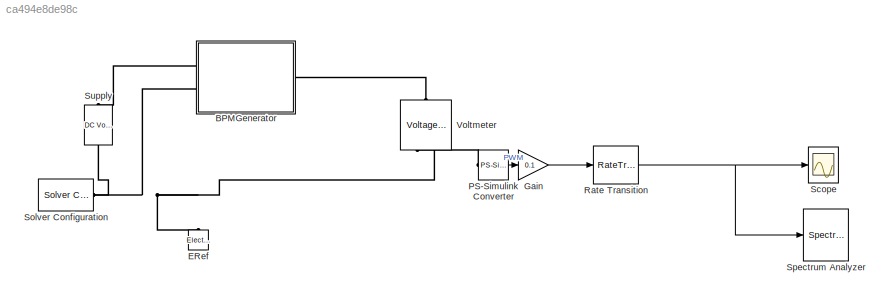
MODEL slx_ca494e8de98c
KIND model
CONFIG AbsTol = auto
CONFIG EnableMultiTasking = off
CONFIG FixedStep = auto
CONFIG MaxStep = auto
CONFIG MinStep = auto
CONFIG RelTol = 1e-3
CONFIG SampleTimeConstraint = Unconstrained
CONFIG Solver = VariableStepAuto
CONFIG SolverName = VariableStepAuto
CONFIG StartTime = 0.0
CONFIG StopTime = 10.0
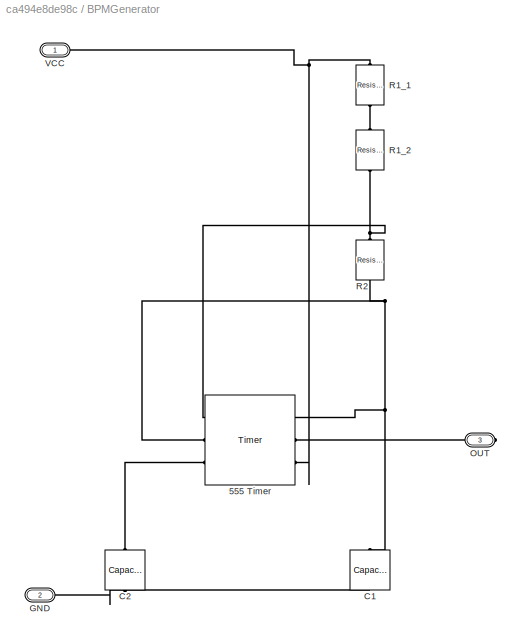
BLOCK [SubSystem] BPMGenerator
  Ports = [0, 0, 0, 0, 0, 2, 1]
  RequestExecContextInheritance = off
BLOCK [Reference] BPMGenerator/555 Timer  REF=ee_lib/Integrated Circuits/Timer
  AttributesFormatString = Vcc = %<V_CC>V
  Ports = [0, 0, 0, 0, 0, 3, 3]
  SourceBlock = ee_lib/Integrated Circuits/Timer
  SourceProductBaseCode = PS
  SourceType = Timer
BLOCK [Reference] BPMGenerator/C1  REF=ee_lib/Passive/Capacitor
  AttributesFormatString = %<c>%<c_unit>
  NameLocation = right
  Ports = [0, 0, 0, 0, 0, 1, 1]
  SourceBlock = ee_lib/Passive/Capacitor
  SourceProductBaseCode = PS
  SourceType = Capacitor
BLOCK [Reference] BPMGenerator/C2  REF=ee_lib/Passive/Capacitor
  AttributesFormatString = %<c>%<c_unit>
  NameLocation = right
  Ports = [0, 0, 0, 0, 0, 1, 1]
  SourceBlock = ee_lib/Passive/Capacitor
  SourceProductBaseCode = PS
  SourceType = Capacitor
BLOCK [PMIOPort] BPMGenerator/GND
  Port = 2
  Side = Left
BLOCK [PMIOPort] BPMGenerator/OUT
  Port = 3
  Side = Right
BLOCK [Reference] BPMGenerator/R1_1  REF=ee_lib/Passive/Resistor
  AttributesFormatString = %<R>%<R_unit>
  NameLocation = left
  Ports = [0, 0, 0, 0, 0, 1, 1]
  SourceBlock = ee_lib/Passive/Resistor
  SourceProductBaseCode = PS
  SourceType = Resistor
BLOCK [Reference] BPMGenerator/R1_2  REF=ee_lib/Passive/Resistor
  AttributesFormatString = %<R>%<R_unit>
  NameLocation = left
  Ports = [0, 0, 0, 0, 0, 1, 1]
  SourceBlock = ee_lib/Passive/Resistor
  SourceProductBaseCode = PS
  SourceType = Resistor
BLOCK [Reference] BPMGenerator/R2  REF=ee_lib/Passive/Resistor
  AttributesFormatString = %<R>%<R_unit>
  NameLocation = left
  Ports = [0, 0, 0, 0, 0, 1, 1]
  SourceBlock = ee_lib/Passive/Resistor
  SourceProductBaseCode = PS
  SourceType = Resistor
BLOCK [PMIOPort] BPMGenerator/VCC
  Side = Left
BLOCK [Reference] ERef  REF=fl_lib/Electrical/Electrical Elements/Electrical Reference
  NameLocation = right
  Ports = [0, 0, 0, 0, 0, 1]
  SourceBlock = fl_lib/Electrical/Electrical Elements/Electrical Reference
  SourceProductBaseCode = MT,SS
  SourceType = Electrical Reference
BLOCK [Gain] Gain
  Gain = 0.1
BLOCK [Reference] PS-Simulink Converter  REF=nesl_utility/PS-Simulink
Converter
  NameLocation = top
  Ports = [0, 1, 0, 0, 0, 1]
  SourceBlock = nesl_utility/PS-Simulink\nConverter
  SourceProductBaseCode = MT,SS
  SourceType = PS-Simulink\nConverter
BLOCK [RateTransition] Rate Transition
  AttributesFormatString = SampleTime = %<OutPortSampleTime>[sec]
  OutPortSampleTime = 1/44100
BLOCK [Scope] Scope
  Floating = off
  NumInputPorts = 1
  Ports = [1]
  ScopeSpecificationString = Simulink.scopes.TimeScopeBlockCfg('CurrentConfiguration', extmgr.ConfigurationSet(extmgr.Configuration('Core','General UI',true),extmgr.Configuration('Core','Source UI',true),extmgr.Configuration('Sources','WiredSimulink',true,'DataLoggingLimitDataPoints',true),extmgr.Configuration('Visuals','Time Domain',true,'SerializedDisplays',{struct('MinYLimReal','-0.0625','MaxYLimReal','0.5625','YLabelReal'...<+2156ch>
  Tag = PublishScope
BLOCK [Reference] Solver Configuration  REF=nesl_utility/Solver
Configuration
  Ports = [0, 0, 0, 0, 0, 0, 1]
  SourceBlock = nesl_utility/Solver\nConfiguration
  SourceProductBaseCode = MT,SS
  SourceType = Solver\nConfiguration
BLOCK [SpectrumAnalyzer] Spectrum Analyzer
  Commented = on
  Ports = [1]
  ScopeSpecificationString = spbscopes.SpectrumAnalyzerBlockCfg('CurrentConfiguration', extmgr.ConfigurationSet(extmgr.Configuration('Core','General UI',true),extmgr.Configuration('Core','Source UI',true),extmgr.Configuration('Sources','WiredSimulink',true),extmgr.Configuration('Visuals','Spectrum',true,'AxesProperties',struct('Color',{[0 0 0],[0 0 0]},'XColor',{[0.686274509803922 0.686274509803922 0.686274509803922],[0.68627...<+2635ch>
BLOCK [Reference] Supply  REF=fl_lib/Electrical/Electrical Sources/DC Voltage Source
  AttributesFormatString = %<v0>V
  NameLocation = left
  Ports = [0, 0, 0, 0, 0, 1, 1]
  SourceBlock = fl_lib/Electrical/Electrical Sources/DC Voltage Source
  SourceProductBaseCode = MT,SS
  SourceType = DC Voltage Source
BLOCK [Reference] Voltmeter  REF=fl_lib/Electrical/Electrical Sensors/Voltage Sensor
  NameLocation = left
  Ports = [0, 0, 0, 0, 0, 1, 2]
  SourceBlock = fl_lib/Electrical/Electrical Sensors/Voltage Sensor
  SourceProductBaseCode = MT,SS
  SourceType = Voltage Sensor
LINE Gain:1 -> Rate Transition:1
LINE PS-Simulink Converter:1 -> Gain:1
NET Rate Transition:1 -> Scope:1, Spectrum Analyzer:1
PNET net1: BPMGenerator/555 Timer:LConn1 -- BPMGenerator/555 Timer:RConn2 -- BPMGenerator/C1:LConn1 -- BPMGenerator/R2:LConn1
PLINE BPMGenerator/555 Timer:LConn2 -- BPMGenerator/OUT:RConn1
PNET net2: BPMGenerator/555 Timer:LConn3 -- BPMGenerator/R1_1:RConn1 -- BPMGenerator/VCC:RConn1
PNET net3: BPMGenerator/555 Timer:RConn1 -- BPMGenerator/R1_2:LConn1 -- BPMGenerator/R2:RConn1
PLINE BPMGenerator/555 Timer:RConn3 -- BPMGenerator/C2:LConn1
PNET net4: BPMGenerator/C1:RConn1 -- BPMGenerator/C2:RConn1 -- BPMGenerator/GND:RConn1
PLINE BPMGenerator/R1_1:LConn1 -- BPMGenerator/R1_2:RConn1
PLINE BPMGenerator:LConn1 -- Supply:LConn1
PNET net5: BPMGenerator:LConn2 -- ERef:LConn1 -- Solver Configuration:RConn1 -- Supply:RConn1 -- Voltmeter:RConn2
PLINE BPMGenerator:RConn1 -- Voltmeter:LConn1
PLINE PS-Simulink Converter:LConn1 -- Voltmeter:RConn1
note: NET lines group one-source signal fan-out (src -> all destinations, sorted); 1:1 wires keep LINE; PNET lines group multi-terminal physical nets as a canonical sorted terminal list (undirected conserving connections); 2-terminal nets keep the pairwise PLINE form
